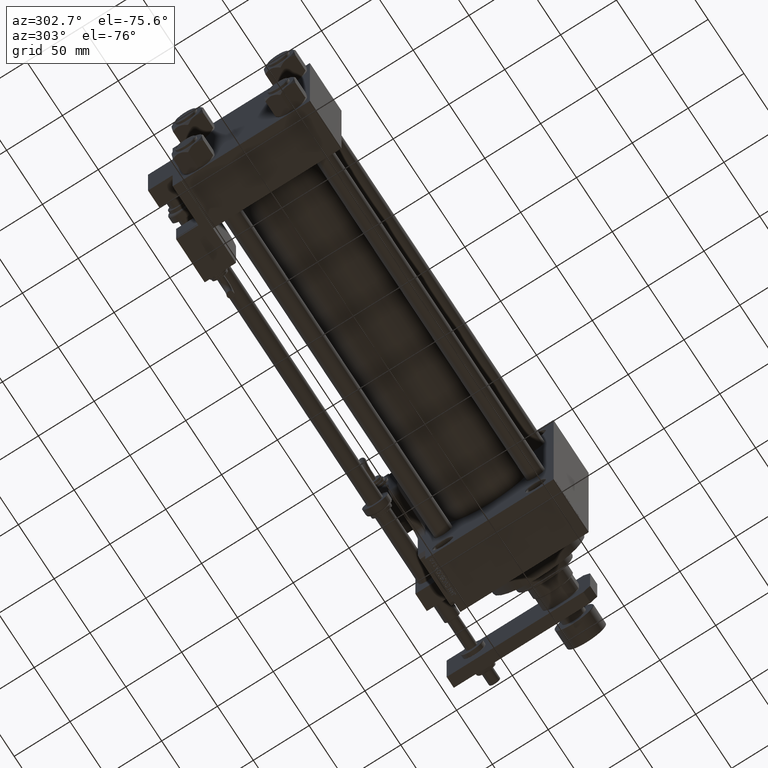
[diagram: clean part render]
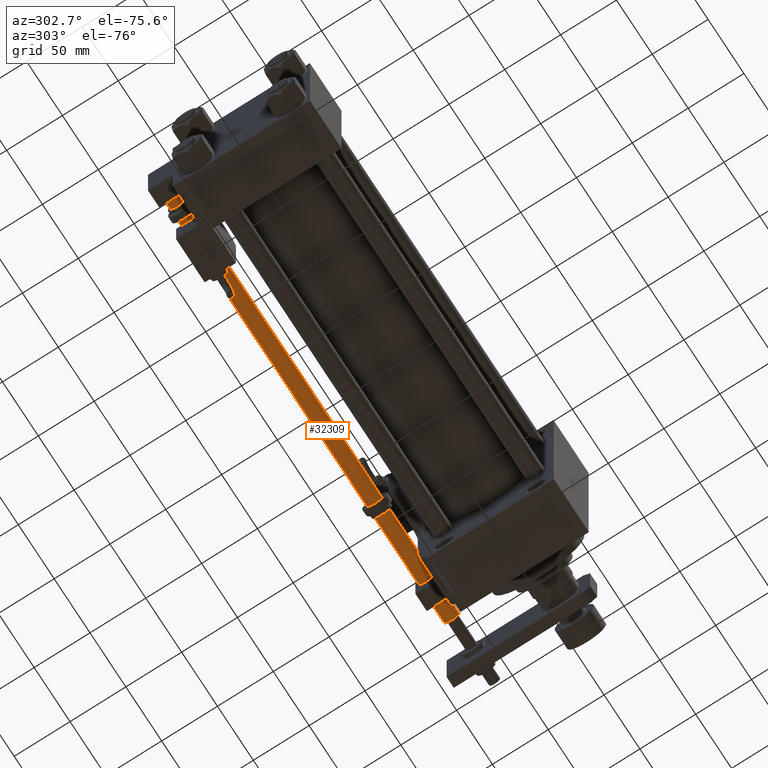
[diagram: same view with one face highlighted and labeled with its STEP entity id]
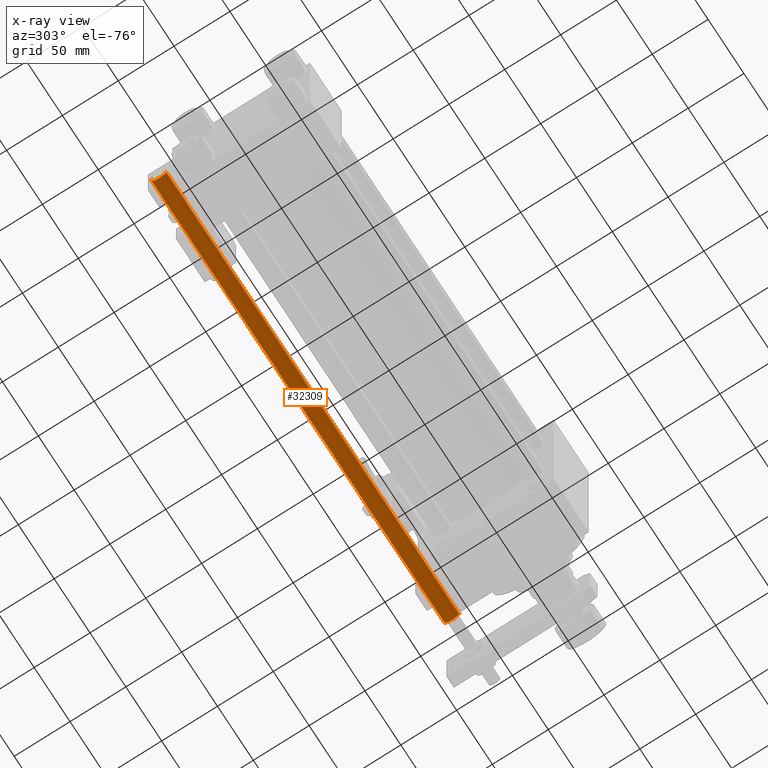
[diagram: x-ray of the same camera — body ghosted, the highlighted face saturated]
A machine part, auxiliary view. The second image highlights one B-rep face of the part: STEP entity #32309.
The next image is the same camera in x-ray: the body ghosted, the highlighted face saturated — about 0% of this face is hidden behind the body in this view.
In plain terms, the highlighted cylindrical surface (edge-blend (fillet) strip) has radius 7 mm, axis along (1, -0, 0).
Its self-contained STEP definition (entity closure, byte-faithful):
#2942 = CIRCLE ( 'NONE', #51659, 7.000000000000000000 ) ;
#4925 = CARTESIAN_POINT ( 'NONE',  ( 0.000000000000000000, 0.000000000000000000, 409.0000000000000000 ) ) ;
#8196 = EDGE_LOOP ( 'NONE', ( #23067, #26537, #38512, #34199 ) ) ;
#9296 = DIRECTION ( 'NONE',  ( 1.000000000000000000, 0.000000000000000000, 0.000000000000000000 ) ) ;
#9643 = VECTOR ( 'NONE', #52222, 1000.000000000000000 ) ;
#13034 = VERTEX_POINT ( 'NONE', #20963 ) ;
#14003 = CIRCLE ( 'NONE', #47907, 7.000000000000000000 ) ;
#15000 = CARTESIAN_POINT ( 'NONE',  ( 0.000000000000000000, 0.000000000000000000, 0.3000000000001334932 ) ) ;
#16421 = AXIS2_PLACEMENT_3D ( 'NONE', #17584, #34184, #46698 ) ;
#17221 = EDGE_CURVE ( 'NONE', #34790, #46883, #40510, .T. ) ;
#17584 = CARTESIAN_POINT ( 'NONE',  ( 0.000000000000000000, 0.000000000000000000, 409.0000000000000000 ) ) ;
#20963 = CARTESIAN_POINT ( 'NONE',  ( 7.000000000000000000, 8.572527594031473190E-16, 409.0000000000000000 ) ) ;
#23067 = ORIENTED_EDGE ( 'NONE', *, *, #37488, .F. ) ;
#26537 = ORIENTED_EDGE ( 'NONE', *, *, #32605, .T. ) ;
#27202 = CARTESIAN_POINT ( 'NONE',  ( -7.000000000000000000, 0.000000000000000000, 409.0000000000000000 ) ) ;
#27346 = DIRECTION ( 'NONE',  ( -0.000000000000000000, -0.000000000000000000, -1.000000000000000000 ) ) ;
#27721 = EDGE_CURVE ( 'NONE', #44332, #46883, #2942, .T. ) ;
#29484 = VECTOR ( 'NONE', #27346, 1000.000000000000000 ) ;
#31604 = DIRECTION ( 'NONE',  ( 1.000000000000000000, 0.000000000000000000, 0.000000000000000000 ) ) ;
#32309 = ADVANCED_FACE ( 'NONE', ( #37716 ), #53777, .T. ) ;
#32605 = EDGE_CURVE ( 'NONE', #13034, #44332, #48551, .T. ) ;
#34184 = DIRECTION ( 'NONE',  ( -0.000000000000000000, -0.000000000000000000, -1.000000000000000000 ) ) ;
#34199 = ORIENTED_EDGE ( 'NONE', *, *, #17221, .F. ) ;
#34790 = VERTEX_POINT ( 'NONE', #38501 ) ;
#35801 = CARTESIAN_POINT ( 'NONE',  ( 7.000000000000000000, 8.572527594031473190E-16, 0.3000000000001334932 ) ) ;
#36027 = CARTESIAN_POINT ( 'NONE',  ( 7.000000000000000000, 8.572527594031473190E-16, 409.0000000000000000 ) ) ;
#37488 = EDGE_CURVE ( 'NONE', #13034, #34790, #14003, .T. ) ;
#37716 = FACE_OUTER_BOUND ( 'NONE', #8196, .T. ) ;
#38501 = CARTESIAN_POINT ( 'NONE',  ( -7.000000000000000000, 0.000000000000000000, 409.0000000000000000 ) ) ;
#38512 = ORIENTED_EDGE ( 'NONE', *, *, #27721, .T. ) ;
#40510 = LINE ( 'NONE', #27202, #9643 ) ;
#40841 = DIRECTION ( 'NONE',  ( -0.000000000000000000, -0.000000000000000000, 1.000000000000000000 ) ) ;
#41680 = DIRECTION ( 'NONE',  ( 0.000000000000000000, 0.000000000000000000, 1.000000000000000000 ) ) ;
#44332 = VERTEX_POINT ( 'NONE', #35801 ) ;
#46698 = DIRECTION ( 'NONE',  ( -1.000000000000000000, 0.000000000000000000, 0.000000000000000000 ) ) ;
#46883 = VERTEX_POINT ( 'NONE', #49290 ) ;
#47907 = AXIS2_PLACEMENT_3D ( 'NONE', #4925, #41680, #9296 ) ;
#48551 = LINE ( 'NONE', #36027, #29484 ) ;
#49290 = CARTESIAN_POINT ( 'NONE',  ( -7.000000000000000000, 0.000000000000000000, 0.3000000000001334932 ) ) ;
#51659 = AXIS2_PLACEMENT_3D ( 'NONE', #15000, #40841, #31604 ) ;
#52222 = DIRECTION ( 'NONE',  ( -0.000000000000000000, -0.000000000000000000, -1.000000000000000000 ) ) ;
#53777 = CYLINDRICAL_SURFACE ( 'NONE', #16421, 7.000000000000000000 ) ;